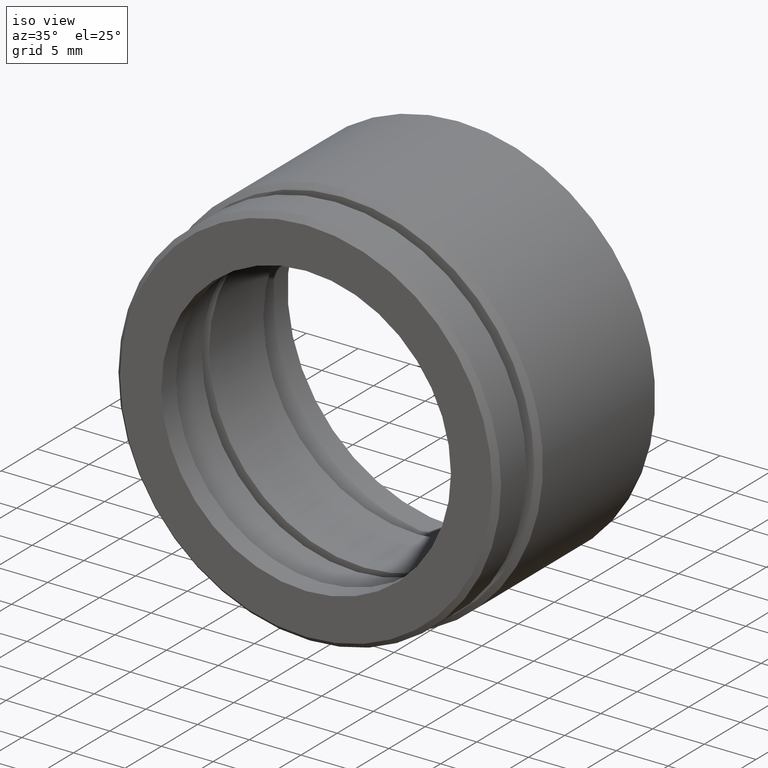
[diagram: clean part render]
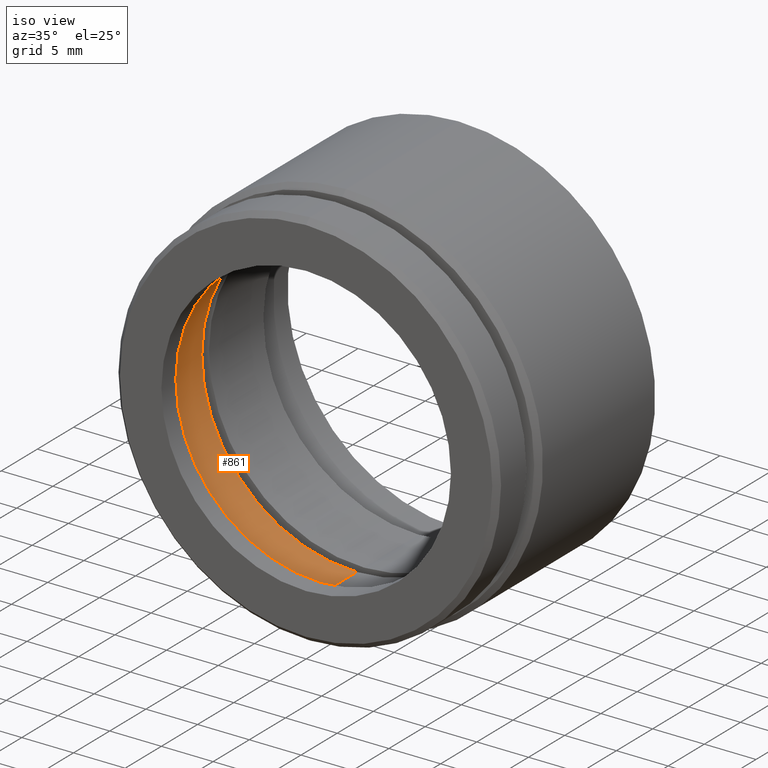
[diagram: same view with one face highlighted and labeled with its STEP entity id]
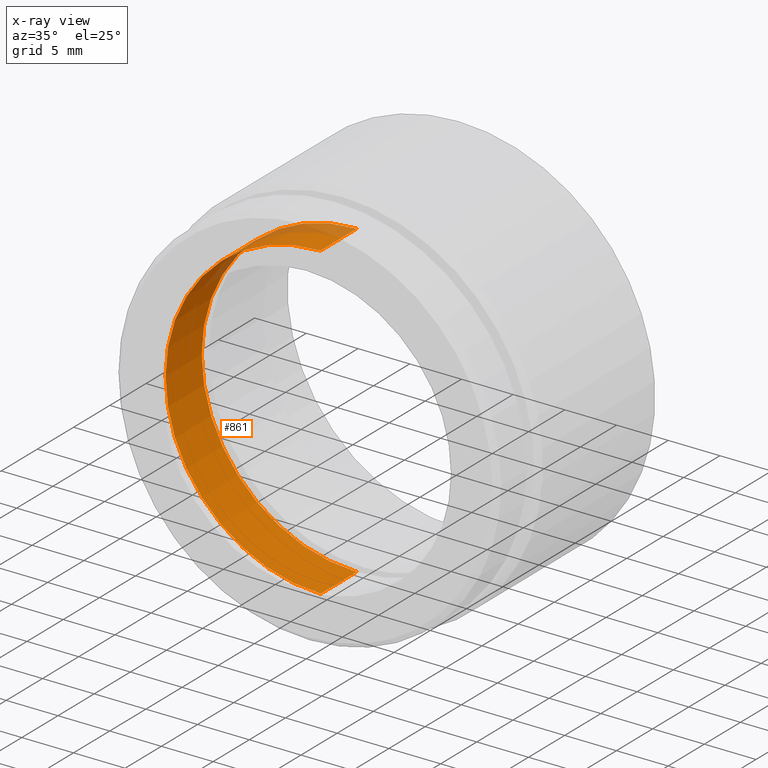
[diagram: x-ray of the same camera — body ghosted, the highlighted face saturated]
A machine part, iso view. The second image highlights one B-rep face of the part: STEP entity #861.
The next image is the same camera in x-ray: the body ghosted, the highlighted face saturated — about 6% of this face is hidden behind the body in this view.
In plain terms, the highlighted cylindrical surface (partial cylindrical patch) has radius 15 mm, axis along (-0, -1, -0).
Its self-contained STEP definition (entity closure, byte-faithful):
#4 = EDGE_CURVE ( 'NONE', #1000, #671, #194, .T. ) ;
#17 = CARTESIAN_POINT ( 'NONE',  ( 0.0000000000000000000, 2.000000000000000000, -15.00000000000000000 ) ) ;
#102 = ORIENTED_EDGE ( 'NONE', *, *, #4, .T. ) ;
#106 = LINE ( 'NONE', #490, #160 ) ;
#160 = VECTOR ( 'NONE', #230, 1000.000000000000000 ) ;
#164 = EDGE_CURVE ( 'NONE', #289, #671, #106, .T. ) ;
#190 = ORIENTED_EDGE ( 'NONE', *, *, #977, .T. ) ;
#194 = CIRCLE ( 'NONE', #911, 15.00000000000000000 ) ;
#230 = DIRECTION ( 'NONE',  ( -0.0000000000000000000, -1.000000000000000000, -0.0000000000000000000 ) ) ;
#233 = DIRECTION ( 'NONE',  ( -0.0000000000000000000, -1.000000000000000000, -0.0000000000000000000 ) ) ;
#271 = DIRECTION ( 'NONE',  ( 0.0000000000000000000, 0.0000000000000000000, -1.000000000000000000 ) ) ;
#289 = VERTEX_POINT ( 'NONE', #442 ) ;
#297 = CARTESIAN_POINT ( 'NONE',  ( 0.0000000000000000000, 7.000000000000000000, 0.0000000000000000000 ) ) ;
#360 = AXIS2_PLACEMENT_3D ( 'NONE', #480, #648, #617 ) ;
#367 = DIRECTION ( 'NONE',  ( -0.0000000000000000000, -1.000000000000000000, -0.0000000000000000000 ) ) ;
#420 = CARTESIAN_POINT ( 'NONE',  ( 0.0000000000000000000, 2.000000000000000000, 0.0000000000000000000 ) ) ;
#442 = CARTESIAN_POINT ( 'NONE',  ( 0.0000000000000000000, 7.000000000000000000, -15.00000000000000000 ) ) ;
#443 = FACE_OUTER_BOUND ( 'NONE', #784, .T. ) ;
#478 = DIRECTION ( 'NONE',  ( 0.0000000000000000000, 0.0000000000000000000, -1.000000000000000000 ) ) ;
#480 = CARTESIAN_POINT ( 'NONE',  ( 0.0000000000000000000, 0.0000000000000000000, 0.0000000000000000000 ) ) ;
#490 = CARTESIAN_POINT ( 'NONE',  ( 0.0000000000000000000, 0.0000000000000000000, -15.00000000000000000 ) ) ;
#533 = ORIENTED_EDGE ( 'NONE', *, *, #164, .F. ) ;
#548 = CARTESIAN_POINT ( 'NONE',  ( 1.836970198721029600E-015, 0.0000000000000000000, 15.00000000000000000 ) ) ;
#549 = DIRECTION ( 'NONE',  ( -0.0000000000000000000, -1.000000000000000000, -0.0000000000000000000 ) ) ;
#566 = CARTESIAN_POINT ( 'NONE',  ( 1.836970198721029600E-015, 7.000000000000000000, 15.00000000000000000 ) ) ;
#604 = ORIENTED_EDGE ( 'NONE', *, *, #894, .F. ) ;
#617 = DIRECTION ( 'NONE',  ( 0.0000000000000000000, 0.0000000000000000000, -1.000000000000000000 ) ) ;
#648 = DIRECTION ( 'NONE',  ( -0.0000000000000000000, -1.000000000000000000, -0.0000000000000000000 ) ) ;
#671 = VERTEX_POINT ( 'NONE', #17 ) ;
#743 = CARTESIAN_POINT ( 'NONE',  ( 1.836970198721029600E-015, 2.000000000000000000, 15.00000000000000000 ) ) ;
#784 = EDGE_LOOP ( 'NONE', ( #604, #190, #102, #533 ) ) ;
#840 = VECTOR ( 'NONE', #549, 1000.000000000000000 ) ;
#861 = ADVANCED_FACE ( 'NONE', ( #443 ), #1085, .F. ) ;
#862 = VERTEX_POINT ( 'NONE', #566 ) ;
#894 = EDGE_CURVE ( 'NONE', #862, #289, #926, .T. ) ;
#911 = AXIS2_PLACEMENT_3D ( 'NONE', #420, #233, #271 ) ;
#926 = CIRCLE ( 'NONE', #1089, 15.00000000000000000 ) ;
#977 = EDGE_CURVE ( 'NONE', #862, #1000, #1021, .T. ) ;
#1000 = VERTEX_POINT ( 'NONE', #743 ) ;
#1021 = LINE ( 'NONE', #548, #840 ) ;
#1085 = CYLINDRICAL_SURFACE ( 'NONE', #360, 15.00000000000000000 ) ;
#1089 = AXIS2_PLACEMENT_3D ( 'NONE', #297, #367, #478 ) ;